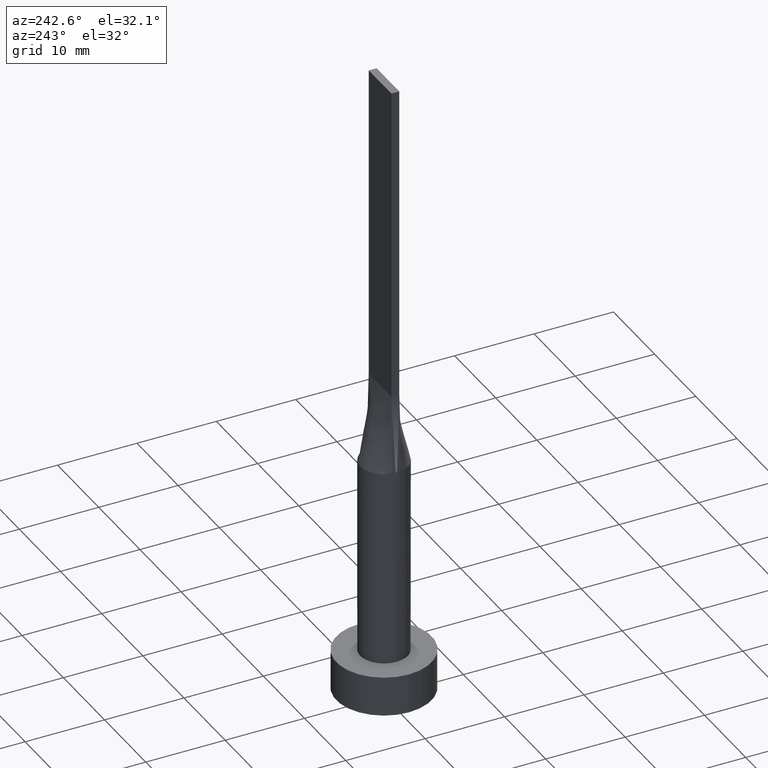
[diagram: clean part render]
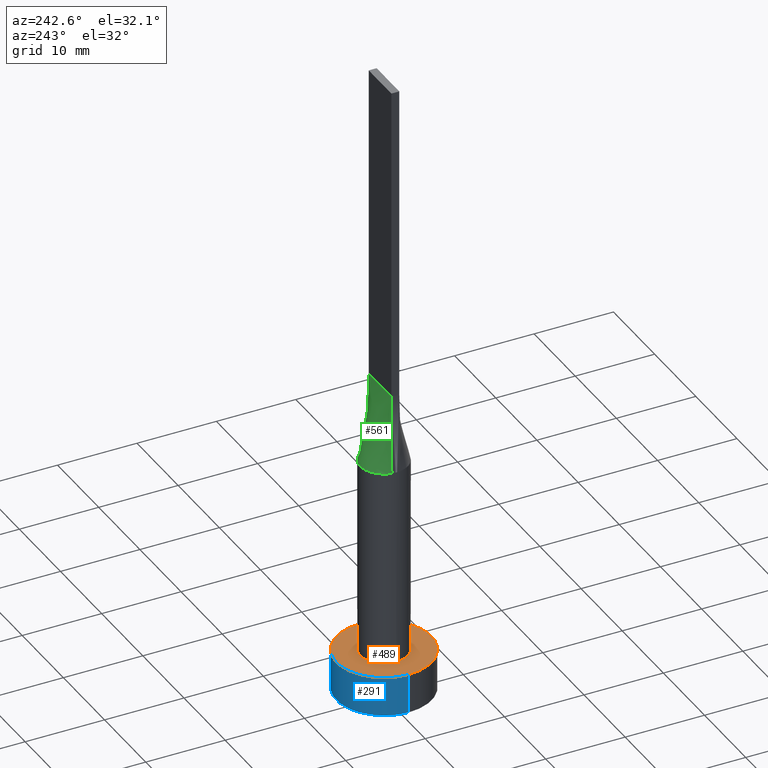
[diagram: same view with three faces highlighted in distinct colors, each labeled with its STEP entity id]
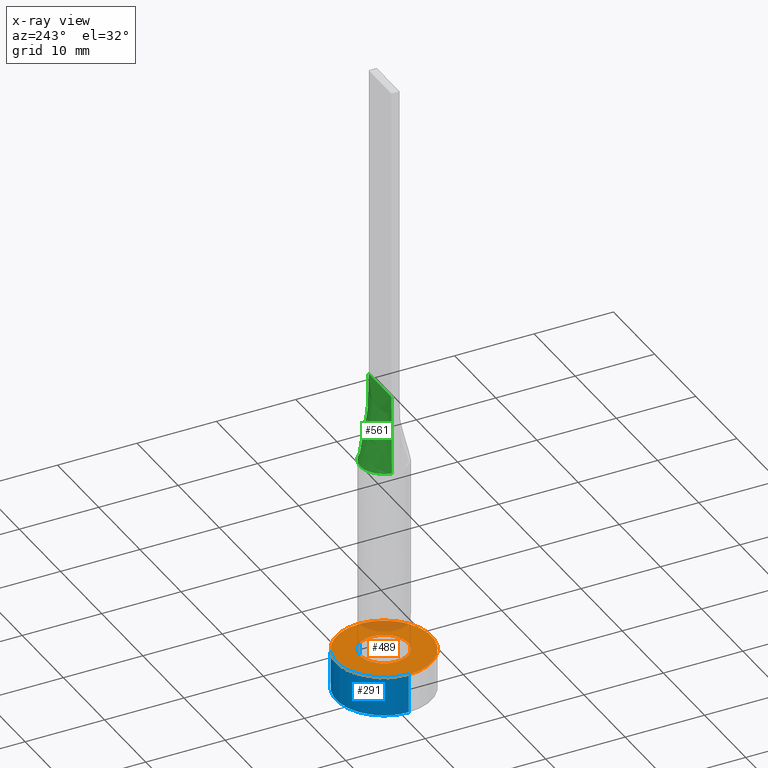
[diagram: x-ray of the same camera — body ghosted, the three highlighted faces saturated]
A machine part, auxiliary view with three faces highlighted in distinct colors.
The next image is the same camera in x-ray (body ghosted, the three faces saturated) — at least one of them is partly hidden behind the body in this view.
Their STEP definitions:

[orange] entity #489 — the highlighted planar face has unit normal (0, 0, 1).
#28 = EDGE_CURVE ( 'NONE', #94, #29, #428, .T. ) ;
#29 = VERTEX_POINT ( 'NONE', #376 ) ;
#34 = DIRECTION ( 'NONE',  ( 1.000000000000000000, 0.000000000000000000, 0.000000000000000000 ) ) ;
#42 = CARTESIAN_POINT ( 'NONE',  ( 0.000000000000000000, 0.000000000000000000, 5.000000000000000000 ) ) ;
#44 = DIRECTION ( 'NONE',  ( 0.000000000000000000, 0.000000000000000000, 1.000000000000000000 ) ) ;
#45 = EDGE_LOOP ( 'NONE', ( #311, #517 ) ) ;
#69 = DIRECTION ( 'NONE',  ( 1.000000000000000000, 0.000000000000000000, 0.000000000000000000 ) ) ;
#94 = VERTEX_POINT ( 'NONE', #198 ) ;
#104 = AXIS2_PLACEMENT_3D ( 'NONE', #204, #385, #247 ) ;
#114 = CIRCLE ( 'NONE', #235, 6.000000000000000888 ) ;
#159 = ORIENTED_EDGE ( 'NONE', *, *, #511, .T. ) ;
#168 = EDGE_CURVE ( 'NONE', #568, #270, #459, .T. ) ;
#188 = EDGE_CURVE ( 'NONE', #29, #94, #361, .T. ) ;
#190 = CARTESIAN_POINT ( 'NONE',  ( 0.000000000000000000, 0.000000000000000000, 5.000000000000000000 ) ) ;
#198 = CARTESIAN_POINT ( 'NONE',  ( -3.000000000000000444, 0.000000000000000000, 5.000000000000000000 ) ) ;
#204 = CARTESIAN_POINT ( 'NONE',  ( 0.000000000000000000, 0.000000000000000000, 5.000000000000000000 ) ) ;
#235 = AXIS2_PLACEMENT_3D ( 'NONE', #42, #44, #34 ) ;
#238 = CARTESIAN_POINT ( 'NONE',  ( 0.000000000000000000, 0.000000000000000000, 5.000000000000000000 ) ) ;
#246 = AXIS2_PLACEMENT_3D ( 'NONE', #293, #252, #69 ) ;
#247 = DIRECTION ( 'NONE',  ( 1.000000000000000000, 0.000000000000000000, 0.000000000000000000 ) ) ;
#252 = DIRECTION ( 'NONE',  ( 0.000000000000000000, 0.000000000000000000, 1.000000000000000000 ) ) ;
#270 = VERTEX_POINT ( 'NONE', #417 ) ;
#293 = CARTESIAN_POINT ( 'NONE',  ( 0.000000000000000000, 0.000000000000000000, 5.000000000000000000 ) ) ;
#311 = ORIENTED_EDGE ( 'NONE', *, *, #28, .F. ) ;
#326 = AXIS2_PLACEMENT_3D ( 'NONE', #238, #435, #433 ) ;
#335 = FACE_BOUND ( 'NONE', #45, .T. ) ;
#351 = AXIS2_PLACEMENT_3D ( 'NONE', #190, #418, #445 ) ;
#361 = CIRCLE ( 'NONE', #104, 3.000000000000000444 ) ;
#376 = CARTESIAN_POINT ( 'NONE',  ( 3.000000000000000444, 3.673940397442060361E-16, 5.000000000000000000 ) ) ;
#385 = DIRECTION ( 'NONE',  ( 0.000000000000000000, 0.000000000000000000, 1.000000000000000000 ) ) ;
#393 = ORIENTED_EDGE ( 'NONE', *, *, #168, .T. ) ;
#417 = CARTESIAN_POINT ( 'NONE',  ( 6.000000000000000888, 7.347880794884120722E-16, 5.000000000000000000 ) ) ;
#418 = DIRECTION ( 'NONE',  ( 0.000000000000000000, 0.000000000000000000, 1.000000000000000000 ) ) ;
#428 = CIRCLE ( 'NONE', #351, 3.000000000000000444 ) ;
#433 = DIRECTION ( 'NONE',  ( 1.000000000000000000, 0.000000000000000000, -0.000000000000000000 ) ) ;
#435 = DIRECTION ( 'NONE',  ( 0.000000000000000000, 0.000000000000000000, 1.000000000000000000 ) ) ;
#445 = DIRECTION ( 'NONE',  ( 1.000000000000000000, 0.000000000000000000, 0.000000000000000000 ) ) ;
#454 = CARTESIAN_POINT ( 'NONE',  ( -6.000000000000000888, 0.000000000000000000, 5.000000000000000000 ) ) ;
#459 = CIRCLE ( 'NONE', #246, 6.000000000000000888 ) ;
#460 = PLANE ( 'NONE',  #326 ) ;
#464 = EDGE_LOOP ( 'NONE', ( #393, #159 ) ) ;
#489 = ADVANCED_FACE ( 'NONE', ( #335, #507 ), #460, .T. ) ;
#507 = FACE_OUTER_BOUND ( 'NONE', #464, .T. ) ;
#511 = EDGE_CURVE ( 'NONE', #270, #568, #114, .T. ) ;
#517 = ORIENTED_EDGE ( 'NONE', *, *, #188, .F. ) ;
#568 = VERTEX_POINT ( 'NONE', #454 ) ;

[blue] entity #291 — the highlighted cylindrical surface (partial cylindrical patch) has radius 6 mm, axis along (-0, -0, -1).
#34 = DIRECTION ( 'NONE',  ( 1.000000000000000000, 0.000000000000000000, 0.000000000000000000 ) ) ;
#42 = CARTESIAN_POINT ( 'NONE',  ( 0.000000000000000000, 0.000000000000000000, 5.000000000000000000 ) ) ;
#44 = DIRECTION ( 'NONE',  ( 0.000000000000000000, 0.000000000000000000, 1.000000000000000000 ) ) ;
#46 = LINE ( 'NONE', #181, #382 ) ;
#47 = DIRECTION ( 'NONE',  ( 1.000000000000000000, 0.000000000000000000, 0.000000000000000000 ) ) ;
#51 = DIRECTION ( 'NONE',  ( -1.000000000000000000, 0.000000000000000000, 0.000000000000000000 ) ) ;
#60 = VECTOR ( 'NONE', #365, 1000.000000000000000 ) ;
#86 = ORIENTED_EDGE ( 'NONE', *, *, #511, .F. ) ;
#98 = CARTESIAN_POINT ( 'NONE',  ( -6.000000000000000888, 0.000000000000000000, 0.000000000000000000 ) ) ;
#102 = LINE ( 'NONE', #378, #60 ) ;
#106 = EDGE_CURVE ( 'NONE', #568, #338, #102, .T. ) ;
#108 = CARTESIAN_POINT ( 'NONE',  ( 0.000000000000000000, 0.000000000000000000, 0.000000000000000000 ) ) ;
#114 = CIRCLE ( 'NONE', #235, 6.000000000000000888 ) ;
#131 = EDGE_LOOP ( 'NONE', ( #86, #269, #437, #399 ) ) ;
#139 = CARTESIAN_POINT ( 'NONE',  ( 0.000000000000000000, 0.000000000000000000, 5.000000000000000000 ) ) ;
#167 = AXIS2_PLACEMENT_3D ( 'NONE', #108, #450, #47 ) ;
#181 = CARTESIAN_POINT ( 'NONE',  ( 6.000000000000000888, 7.347880794884120722E-16, 5.000000000000000000 ) ) ;
#209 = AXIS2_PLACEMENT_3D ( 'NONE', #139, #579, #51 ) ;
#235 = AXIS2_PLACEMENT_3D ( 'NONE', #42, #44, #34 ) ;
#269 = ORIENTED_EDGE ( 'NONE', *, *, #504, .T. ) ;
#270 = VERTEX_POINT ( 'NONE', #417 ) ;
#280 = VERTEX_POINT ( 'NONE', #553 ) ;
#282 = FACE_OUTER_BOUND ( 'NONE', #131, .T. ) ;
#288 = CIRCLE ( 'NONE', #167, 6.000000000000000888 ) ;
#291 = ADVANCED_FACE ( 'NONE', ( #282 ), #441, .T. ) ;
#338 = VERTEX_POINT ( 'NONE', #98 ) ;
#346 = EDGE_CURVE ( 'NONE', #280, #338, #288, .T. ) ;
#365 = DIRECTION ( 'NONE',  ( -0.000000000000000000, -0.000000000000000000, -1.000000000000000000 ) ) ;
#378 = CARTESIAN_POINT ( 'NONE',  ( -6.000000000000000888, 0.000000000000000000, 5.000000000000000000 ) ) ;
#382 = VECTOR ( 'NONE', #396, 1000.000000000000000 ) ;
#396 = DIRECTION ( 'NONE',  ( -0.000000000000000000, -0.000000000000000000, -1.000000000000000000 ) ) ;
#399 = ORIENTED_EDGE ( 'NONE', *, *, #106, .F. ) ;
#417 = CARTESIAN_POINT ( 'NONE',  ( 6.000000000000000888, 7.347880794884120722E-16, 5.000000000000000000 ) ) ;
#437 = ORIENTED_EDGE ( 'NONE', *, *, #346, .T. ) ;
#441 = CYLINDRICAL_SURFACE ( 'NONE', #209, 6.000000000000000888 ) ;
#450 = DIRECTION ( 'NONE',  ( 0.000000000000000000, 0.000000000000000000, 1.000000000000000000 ) ) ;
#454 = CARTESIAN_POINT ( 'NONE',  ( -6.000000000000000888, 0.000000000000000000, 5.000000000000000000 ) ) ;
#504 = EDGE_CURVE ( 'NONE', #270, #280, #46, .T. ) ;
#511 = EDGE_CURVE ( 'NONE', #270, #568, #114, .T. ) ;
#553 = CARTESIAN_POINT ( 'NONE',  ( 6.000000000000000888, 7.347880794884120722E-16, 0.000000000000000000 ) ) ;
#568 = VERTEX_POINT ( 'NONE', #454 ) ;
#579 = DIRECTION ( 'NONE',  ( -0.000000000000000000, -0.000000000000000000, -1.000000000000000000 ) ) ;

[green] entity #561 — the highlighted face is a freeform B-spline surface patch.
#8 = B_SPLINE_CURVE_WITH_KNOTS ( 'NONE', 3,
 ( #234, #415, #73, #77, #217, #480, #266, #208, #390, #301, #80, #436, #434, #567, #303, #474, #431, #172 ),
 .UNSPECIFIED., .F., .F.,
 ( 4, 2, 2, 2, 2, 2, 2, 2, 4 ),
 ( 0.000000000000000000, 0.1250000000000000000, 0.2500000000000000000, 0.3750000000000000000, 0.5000000000000000000, 0.6250000000000000000, 0.7500000000000000000, 0.8750000000000000000, 1.000000000000000000 ),
 .UNSPECIFIED. ) ;
#12 = EDGE_CURVE ( 'NONE', #359, #119, #130, .T. ) ;
#20 = VECTOR ( 'NONE', #340, 1000.000000000000114 ) ;
#27 = CARTESIAN_POINT ( 'NONE',  ( -2.829409566978765334, 1.041313647073049298, 30.00000000000001066 ) ) ;
#48 = CARTESIAN_POINT ( 'NONE',  ( -2.567367750129864401, 1.580669302822275357, 30.00000000000001421 ) ) ;
#53 = CARTESIAN_POINT ( 'NONE',  ( 0.2291666666666662966, 0.5000000000000002220, 40.00000000000000000 ) ) ;
#56 = CARTESIAN_POINT ( 'NONE',  ( 0.4583333333333330373, 0.5000000000000002220, 39.99999999999999289 ) ) ;
#58 = CARTESIAN_POINT ( 'NONE',  ( -2.382399439808186692, 1.857547746650221265, 30.00000000000001066 ) ) ;
#61 = DIRECTION ( 'NONE',  ( 0.02015674154923146819, -0.003664862099860173583, 0.9997901152521495582 ) ) ;
#73 = CARTESIAN_POINT ( 'NONE',  ( 2.829409566978765778, 1.041313647073049298, 30.00000000000001421 ) ) ;
#77 = CARTESIAN_POINT ( 'NONE',  ( 2.567367750129863957, 1.580669302822274913, 30.00000000000001066 ) ) ;
#80 = CARTESIAN_POINT ( 'NONE',  ( -0.8331239790496237640, 2.909606296598777231, 30.00000000000000000 ) ) ;
#87 = EDGE_CURVE ( 'NONE', #89, #119, #501, .T. ) ;
#89 = VERTEX_POINT ( 'NONE', #110 ) ;
#100 = CARTESIAN_POINT ( 'NONE',  ( -1.604166666666666963, 0.5000000000000002220, 39.99999999999999289 ) ) ;
#110 = CARTESIAN_POINT ( 'NONE',  ( -2.951881273711813858, 0.5367053345652121887, 30.00000000000000355 ) ) ;
#119 = VERTEX_POINT ( 'NONE', #488 ) ;
#130 = LINE ( 'NONE', #309, #132 ) ;
#132 = VECTOR ( 'NONE', #220, 1000.000000000000000 ) ;
#136 = CARTESIAN_POINT ( 'NONE',  ( 2.567367750129863957, 1.580669302822274913, 30.00000000000001066 ) ) ;
#138 = CARTESIAN_POINT ( 'NONE',  ( 2.829409566978765778, 1.041313647073049298, 30.00000000000001421 ) ) ;
#150 = CARTESIAN_POINT ( 'NONE',  ( -0.9166666666666669627, 0.5000000000000002220, 39.99999999999999289 ) ) ;
#164 = CARTESIAN_POINT ( 'NONE',  ( -2.291666666666666519, 0.5000000000000002220, 39.99999999999999289 ) ) ;
#172 = CARTESIAN_POINT ( 'NONE',  ( -2.951881273711813858, 0.5367053345652121887, 30.00000000000000355 ) ) ;
#183 = ORIENTED_EDGE ( 'NONE', *, *, #352, .T. ) ;
#186 = CARTESIAN_POINT ( 'NONE',  ( 2.750000000000000000, 0.5000000000000002220, 40.00000000000000000 ) ) ;
#197 = CARTESIAN_POINT ( 'NONE',  ( 1.145833333333333037, 0.5000000000000002220, 39.99999999999999289 ) ) ;
#201 = ORIENTED_EDGE ( 'NONE', *, *, #12, .F. ) ;
#207 = VECTOR ( 'NONE', #61, 1000.000000000000114 ) ;
#208 = CARTESIAN_POINT ( 'NONE',  ( 0.8331239790496237640, 2.909606296598776787, 30.00000000000000355 ) ) ;
#217 = CARTESIAN_POINT ( 'NONE',  ( 2.382399439808187580, 1.857547746650221709, 30.00000000000000711 ) ) ;
#220 = DIRECTION ( 'NONE',  ( -1.000000000000000000, -0.000000000000000000, -0.000000000000000000 ) ) ;
#229 = CARTESIAN_POINT ( 'NONE',  ( -0.8331239790496237640, 2.909606296598777231, 30.00000000000000000 ) ) ;
#230 = B_SPLINE_SURFACE_WITH_KNOTS ( 'NONE', 3, 1, ( 
 ( #406, #186 ),
 ( #366, #542 ),
 ( #138, #276 ),
 ( #136, #491 ),
 ( #368, #496 ),
 ( #410, #197 ),
 ( #449, #324 ),
 ( #279, #56 ),
 ( #581, #53 ),
 ( #402, #537 ),
 ( #229, #232 ),
 ( #373, #150 ),
 ( #329, #452 ),
 ( #58, #100 ),
 ( #48, #296 ),
 ( #27, #164 ),
 ( #414, #285 ),
 ( #505, #377 ) ),
 .UNSPECIFIED., .F., .F., .F.,
 ( 4, 2, 2, 2, 2, 2, 2, 2, 4 ),
 ( 2, 2 ),
 ( 0.000000000000000000, 0.1250000000000000000, 0.2500000000000000000, 0.3750000000000000000, 0.5000000000000000000, 0.6250000000000000000, 0.7500000000000000000, 0.8750000000000000000, 1.000000000000000000 ),
 ( 0.000000000000000000, 1.000000000000000000 ),
 .UNSPECIFIED. ) ;
#232 = CARTESIAN_POINT ( 'NONE',  ( -0.4583333333333337034, 0.5000000000000002220, 39.99999999999999289 ) ) ;
#233 = LINE ( 'NONE', #453, #20 ) ;
#234 = CARTESIAN_POINT ( 'NONE',  ( 2.951871110830718514, 0.5367036202482695639, 30.00000000000000355 ) ) ;
#266 = CARTESIAN_POINT ( 'NONE',  ( 1.566158656300002061, 2.589797565249318811, 30.00000000000000000 ) ) ;
#276 = CARTESIAN_POINT ( 'NONE',  ( 2.291666666666666519, 0.5000000000000002220, 39.99999999999999289 ) ) ;
#279 = CARTESIAN_POINT ( 'NONE',  ( 0.8331239790496237640, 2.909606296598776787, 30.00000000000000355 ) ) ;
#285 = CARTESIAN_POINT ( 'NONE',  ( -2.520833333333333037, 0.5000000000000002220, 39.99999999999999289 ) ) ;
#292 = VERTEX_POINT ( 'NONE', #401 ) ;
#296 = CARTESIAN_POINT ( 'NONE',  ( -1.833333333333333481, 0.5000000000000002220, 39.99999999999999289 ) ) ;
#301 = CARTESIAN_POINT ( 'NONE',  ( -0.4172881767044976375, 2.999999999999999556, 29.99999999999999645 ) ) ;
#303 = CARTESIAN_POINT ( 'NONE',  ( -2.567367750129864401, 1.580669302822275357, 30.00000000000001421 ) ) ;
#306 = EDGE_LOOP ( 'NONE', ( #183, #545, #201, #562 ) ) ;
#309 = CARTESIAN_POINT ( 'NONE',  ( -2.750000000000000000, 0.5000000000000002220, 40.00000000000000000 ) ) ;
#314 = FACE_OUTER_BOUND ( 'NONE', #306, .T. ) ;
#323 = CARTESIAN_POINT ( 'NONE',  ( -2.850804865149861200, 0.5183281572999746123, 35.00000000000000000 ) ) ;
#324 = CARTESIAN_POINT ( 'NONE',  ( 0.9166666666666664076, 0.5000000000000002220, 39.99999999999999289 ) ) ;
#329 = CARTESIAN_POINT ( 'NONE',  ( -1.882426928433513336, 2.362790634184935623, 30.00000000000000711 ) ) ;
#340 = DIRECTION ( 'NONE',  ( -0.02015674154923150635, -0.003664862099860195267, 0.9997901152521495582 ) ) ;
#352 = EDGE_CURVE ( 'NONE', #292, #89, #8, .T. ) ;
#359 = VERTEX_POINT ( 'NONE', #375 ) ;
#366 = CARTESIAN_POINT ( 'NONE',  ( 2.907609730299723250, 0.7786563145999496616, 29.99999999999999645 ) ) ;
#368 = CARTESIAN_POINT ( 'NONE',  ( 2.382399439808187580, 1.857547746650221709, 30.00000000000000711 ) ) ;
#373 = CARTESIAN_POINT ( 'NONE',  ( -1.566158656300002061, 2.589797565249319700, 30.00000000000000000 ) ) ;
#375 = CARTESIAN_POINT ( 'NONE',  ( 2.750000000000000000, 0.5000000000000002220, 40.00000000000000000 ) ) ;
#377 = CARTESIAN_POINT ( 'NONE',  ( -2.750000000000000000, 0.5000000000000002220, 40.00000000000000000 ) ) ;
#390 = CARTESIAN_POINT ( 'NONE',  ( 0.4172881767044975820, 3.000000000000000000, 30.00000000000000355 ) ) ;
#400 = EDGE_CURVE ( 'NONE', #292, #359, #233, .T. ) ;
#401 = CARTESIAN_POINT ( 'NONE',  ( 2.951871110830718514, 0.5367036202482695639, 30.00000000000000355 ) ) ;
#402 = CARTESIAN_POINT ( 'NONE',  ( -0.4172881767044976375, 2.999999999999999556, 29.99999999999999645 ) ) ;
#406 = CARTESIAN_POINT ( 'NONE',  ( 2.951609730299722401, 0.5366563145999496687, 30.00000000000000355 ) ) ;
#410 = CARTESIAN_POINT ( 'NONE',  ( 1.882426928433512892, 2.362790634184934291, 30.00000000000000355 ) ) ;
#414 = CARTESIAN_POINT ( 'NONE',  ( -2.907609730299723250, 0.7786563145999495505, 30.00000000000000355 ) ) ;
#415 = CARTESIAN_POINT ( 'NONE',  ( 2.907609730299723250, 0.7786563145999496616, 29.99999999999999645 ) ) ;
#431 = CARTESIAN_POINT ( 'NONE',  ( -2.907609730299723250, 0.7786563145999495505, 30.00000000000000355 ) ) ;
#434 = CARTESIAN_POINT ( 'NONE',  ( -1.882426928433513336, 2.362790634184935623, 30.00000000000000711 ) ) ;
#436 = CARTESIAN_POINT ( 'NONE',  ( -1.566158656300002061, 2.589797565249319700, 30.00000000000000000 ) ) ;
#449 = CARTESIAN_POINT ( 'NONE',  ( 1.566158656300002061, 2.589797565249318811, 30.00000000000000000 ) ) ;
#452 = CARTESIAN_POINT ( 'NONE',  ( -1.145833333333333703, 0.5000000000000002220, 39.99999999999999289 ) ) ;
#453 = CARTESIAN_POINT ( 'NONE',  ( 2.850804865149861644, 0.5183281572999747233, 35.00000000000000000 ) ) ;
#474 = CARTESIAN_POINT ( 'NONE',  ( -2.829409566978765334, 1.041313647073049298, 30.00000000000001066 ) ) ;
#480 = CARTESIAN_POINT ( 'NONE',  ( 1.882426928433512892, 2.362790634184934291, 30.00000000000000355 ) ) ;
#488 = CARTESIAN_POINT ( 'NONE',  ( -2.750000000000000000, 0.5000000000000002220, 40.00000000000000000 ) ) ;
#491 = CARTESIAN_POINT ( 'NONE',  ( 1.833333333333333037, 0.5000000000000002220, 39.99999999999999289 ) ) ;
#496 = CARTESIAN_POINT ( 'NONE',  ( 1.604166666666666519, 0.5000000000000002220, 39.99999999999999289 ) ) ;
#501 = LINE ( 'NONE', #323, #207 ) ;
#505 = CARTESIAN_POINT ( 'NONE',  ( -2.951609730299722401, 0.5366563145999488915, 30.00000000000000355 ) ) ;
#537 = CARTESIAN_POINT ( 'NONE',  ( -0.2291666666666670460, 0.5000000000000002220, 39.99999999999999289 ) ) ;
#542 = CARTESIAN_POINT ( 'NONE',  ( 2.520833333333333037, 0.5000000000000002220, 39.99999999999999289 ) ) ;
#545 = ORIENTED_EDGE ( 'NONE', *, *, #87, .T. ) ;
#561 = ADVANCED_FACE ( 'NONE', ( #314 ), #230, .T. ) ;
#562 = ORIENTED_EDGE ( 'NONE', *, *, #400, .F. ) ;
#567 = CARTESIAN_POINT ( 'NONE',  ( -2.382399439808186692, 1.857547746650221265, 30.00000000000001066 ) ) ;
#581 = CARTESIAN_POINT ( 'NONE',  ( 0.4172881767044975820, 3.000000000000000000, 30.00000000000000355 ) ) ;